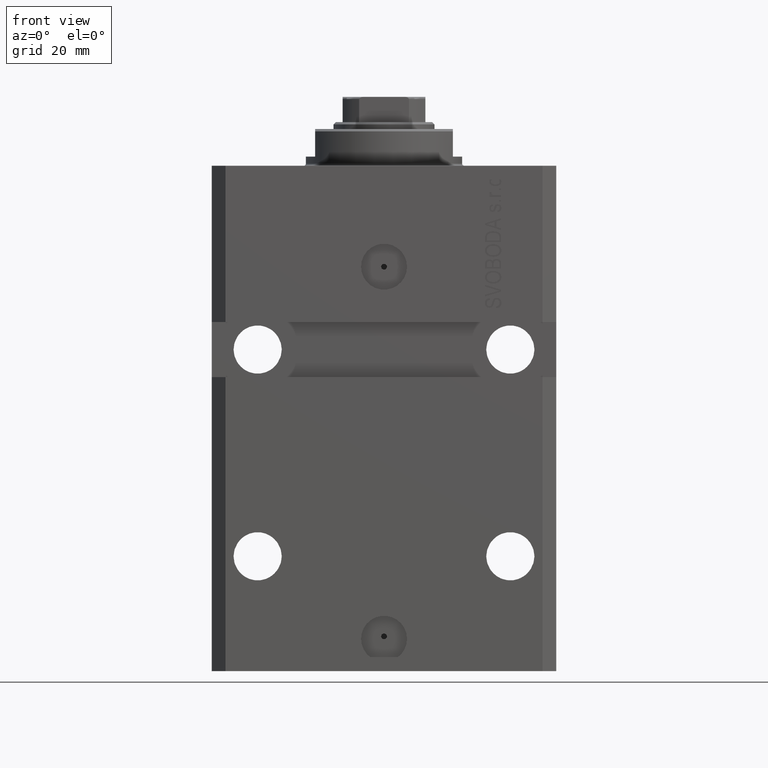
[diagram: clean part render]
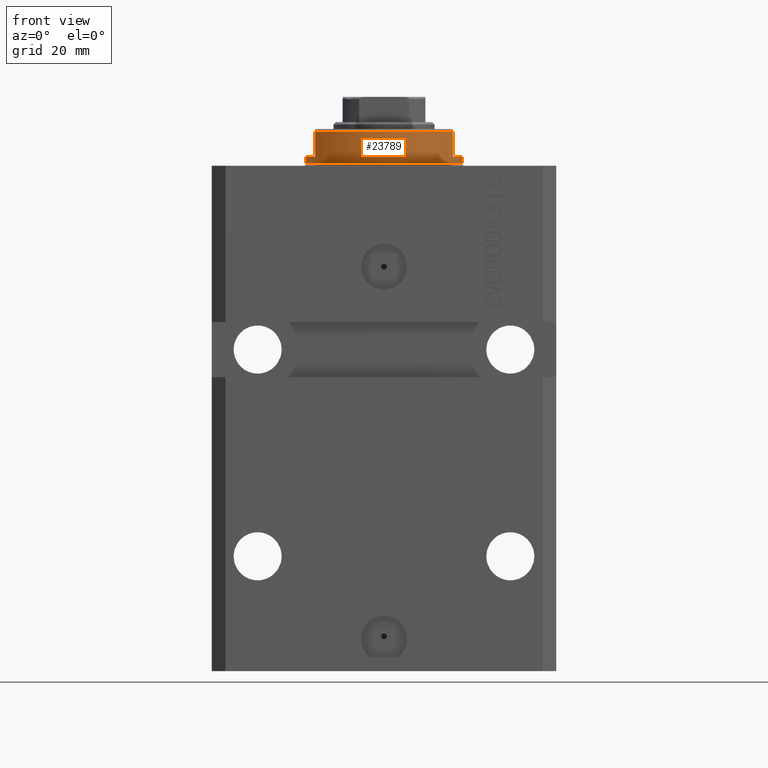
[diagram: same view with one face highlighted and labeled with its STEP entity id]
A machine part, front view. The second image highlights one B-rep face of the part: STEP entity #23789.
In plain terms, the highlighted cylindrical surface (partial cylindrical patch) has radius 17 mm, axis along (0, 0, -1).
Its self-contained STEP definition (entity closure, byte-faithful):
#38 = DIRECTION ( 'NONE',  ( 0.000000000000000000, 0.000000000000000000, -1.000000000000000000 ) ) ;
#391 = DIRECTION ( 'NONE',  ( 0.000000000000000000, 0.000000000000000000, 1.000000000000000000 ) ) ;
#727 = ORIENTED_EDGE ( 'NONE', *, *, #11977, .T. ) ;
#2850 = DIRECTION ( 'NONE',  ( 0.000000000000000000, 0.000000000000000000, -1.000000000000000000 ) ) ;
#3040 = CARTESIAN_POINT ( 'NONE',  ( 0.000000000000000000, 0.000000000000000000, -0.5000000000000004441 ) ) ;
#5205 = EDGE_CURVE ( 'NONE', #45843, #32245, #44006, .T. ) ;
#5331 = ORIENTED_EDGE ( 'NONE', *, *, #12770, .F. ) ;
#5547 = AXIS2_PLACEMENT_3D ( 'NONE', #15290, #38, #18674 ) ;
#5776 = CARTESIAN_POINT ( 'NONE',  ( 0.000000000000000000, 0.000000000000000000, -2.000000000000000000 ) ) ;
#6027 = EDGE_CURVE ( 'NONE', #42102, #32245, #25389, .T. ) ;
#6241 = ORIENTED_EDGE ( 'NONE', *, *, #13831, .F. ) ;
#6681 = LINE ( 'NONE', #28226, #34758 ) ;
#7158 = CARTESIAN_POINT ( 'NONE',  ( 14.99999999999999645, -8.000000000000003553, -2.000000000000000000 ) ) ;
#7372 = CIRCLE ( 'NONE', #25130, 17.00000000000000000 ) ;
#7448 = DIRECTION ( 'NONE',  ( -1.000000000000000000, 0.000000000000000000, 0.000000000000000000 ) ) ;
#10383 = DIRECTION ( 'NONE',  ( 1.000000000000000000, 0.000000000000000000, 0.000000000000000000 ) ) ;
#10764 = CIRCLE ( 'NONE', #28557, 17.00000000000000000 ) ;
#11347 = DIRECTION ( 'NONE',  ( -0.000000000000000000, -0.000000000000000000, 1.000000000000000000 ) ) ;
#11629 = VECTOR ( 'NONE', #15943, 1000.000000000000000 ) ;
#11977 = EDGE_CURVE ( 'NONE', #20076, #42102, #22976, .T. ) ;
#12368 = ORIENTED_EDGE ( 'NONE', *, *, #29737, .T. ) ;
#12770 = EDGE_CURVE ( 'NONE', #26864, #45843, #10764, .T. ) ;
#13831 = EDGE_CURVE ( 'NONE', #26486, #41503, #6681, .T. ) ;
#14010 = CYLINDRICAL_SURFACE ( 'NONE', #19630, 17.00000000000000000 ) ;
#14171 = DIRECTION ( 'NONE',  ( 1.000000000000000000, 0.000000000000000000, 0.000000000000000000 ) ) ;
#14570 = AXIS2_PLACEMENT_3D ( 'NONE', #3040, #24605, #14171 ) ;
#15290 = CARTESIAN_POINT ( 'NONE',  ( 0.000000000000000000, 0.000000000000000000, -2.000000000000000000 ) ) ;
#15943 = DIRECTION ( 'NONE',  ( -0.000000000000000000, -0.000000000000000000, 1.000000000000000000 ) ) ;
#16004 = ORIENTED_EDGE ( 'NONE', *, *, #5205, .F. ) ;
#17532 = ORIENTED_EDGE ( 'NONE', *, *, #27291, .T. ) ;
#17591 = CARTESIAN_POINT ( 'NONE',  ( 17.00000000000000000, 0.000000000000000000, -0.5000000000000004441 ) ) ;
#18674 = DIRECTION ( 'NONE',  ( -1.000000000000000000, 0.000000000000000000, 0.000000000000000000 ) ) ;
#18763 = CARTESIAN_POINT ( 'NONE',  ( -15.00000000000000000, -8.000000000000001776, -8.000000000000000000 ) ) ;
#19023 = EDGE_CURVE ( 'NONE', #20076, #26486, #41126, .T. ) ;
#19630 = AXIS2_PLACEMENT_3D ( 'NONE', #40170, #11347, #10383 ) ;
#19656 = VECTOR ( 'NONE', #41072, 1000.000000000000000 ) ;
#20076 = VERTEX_POINT ( 'NONE', #42158 ) ;
#20247 = ORIENTED_EDGE ( 'NONE', *, *, #19023, .F. ) ;
#22976 = LINE ( 'NONE', #34829, #11629 ) ;
#23789 = ADVANCED_FACE ( 'NONE', ( #33132 ), #14010, .T. ) ;
#24605 = DIRECTION ( 'NONE',  ( -0.000000000000000000, -0.000000000000000000, -1.000000000000000000 ) ) ;
#25130 = AXIS2_PLACEMENT_3D ( 'NONE', #45195, #391, #7448 ) ;
#25389 = CIRCLE ( 'NONE', #14570, 17.00000000000000000 ) ;
#25430 = EDGE_LOOP ( 'NONE', ( #16004, #5331, #17532, #12368, #6241, #20247, #727, #31644 ) ) ;
#26405 = CARTESIAN_POINT ( 'NONE',  ( 15.00000000000000000, -8.000000000000001776, -7.500000000000007105 ) ) ;
#26486 = VERTEX_POINT ( 'NONE', #7158 ) ;
#26864 = VERTEX_POINT ( 'NONE', #37607 ) ;
#27291 = EDGE_CURVE ( 'NONE', #26864, #29381, #37194, .T. ) ;
#28226 = CARTESIAN_POINT ( 'NONE',  ( 15.00000000000000000, -8.000000000000001776, -8.000000000000000000 ) ) ;
#28557 = AXIS2_PLACEMENT_3D ( 'NONE', #5776, #2850, #42817 ) ;
#29381 = VERTEX_POINT ( 'NONE', #36325 ) ;
#29737 = EDGE_CURVE ( 'NONE', #29381, #41503, #7372, .T. ) ;
#30005 = CARTESIAN_POINT ( 'NONE',  ( -17.00000000000000000, 2.081899558550500280E-15, -2.000000000000000000 ) ) ;
#31644 = ORIENTED_EDGE ( 'NONE', *, *, #6027, .T. ) ;
#31807 = CARTESIAN_POINT ( 'NONE',  ( -17.00000000000000000, 2.081899558550500280E-15, -0.5000000000000004441 ) ) ;
#32245 = VERTEX_POINT ( 'NONE', #31807 ) ;
#33127 = VECTOR ( 'NONE', #40869, 1000.000000000000000 ) ;
#33132 = FACE_OUTER_BOUND ( 'NONE', #25430, .T. ) ;
#34758 = VECTOR ( 'NONE', #46624, 1000.000000000000000 ) ;
#34829 = CARTESIAN_POINT ( 'NONE',  ( 17.00000000000000000, 0.000000000000000000, -8.000000000000000000 ) ) ;
#36325 = CARTESIAN_POINT ( 'NONE',  ( -15.00000000000000000, -8.000000000000001776, -7.500000000000007105 ) ) ;
#37194 = LINE ( 'NONE', #18763, #19656 ) ;
#37224 = CARTESIAN_POINT ( 'NONE',  ( -17.00000000000000000, 2.081899558550500280E-15, -8.000000000000000000 ) ) ;
#37607 = CARTESIAN_POINT ( 'NONE',  ( -14.99999999999999645, -8.000000000000003553, -2.000000000000000000 ) ) ;
#40170 = CARTESIAN_POINT ( 'NONE',  ( 0.000000000000000000, 0.000000000000000000, -8.000000000000000000 ) ) ;
#40869 = DIRECTION ( 'NONE',  ( -0.000000000000000000, -0.000000000000000000, 1.000000000000000000 ) ) ;
#41072 = DIRECTION ( 'NONE',  ( 0.000000000000000000, 0.000000000000000000, -1.000000000000000000 ) ) ;
#41126 = CIRCLE ( 'NONE', #5547, 17.00000000000000000 ) ;
#41503 = VERTEX_POINT ( 'NONE', #26405 ) ;
#42102 = VERTEX_POINT ( 'NONE', #17591 ) ;
#42158 = CARTESIAN_POINT ( 'NONE',  ( 17.00000000000000000, 0.000000000000000000, -2.000000000000000000 ) ) ;
#42817 = DIRECTION ( 'NONE',  ( -1.000000000000000000, 0.000000000000000000, 0.000000000000000000 ) ) ;
#44006 = LINE ( 'NONE', #37224, #33127 ) ;
#45195 = CARTESIAN_POINT ( 'NONE',  ( 0.000000000000000000, 0.000000000000000000, -7.500000000000007105 ) ) ;
#45843 = VERTEX_POINT ( 'NONE', #30005 ) ;
#46624 = DIRECTION ( 'NONE',  ( 0.000000000000000000, 0.000000000000000000, -1.000000000000000000 ) ) ;